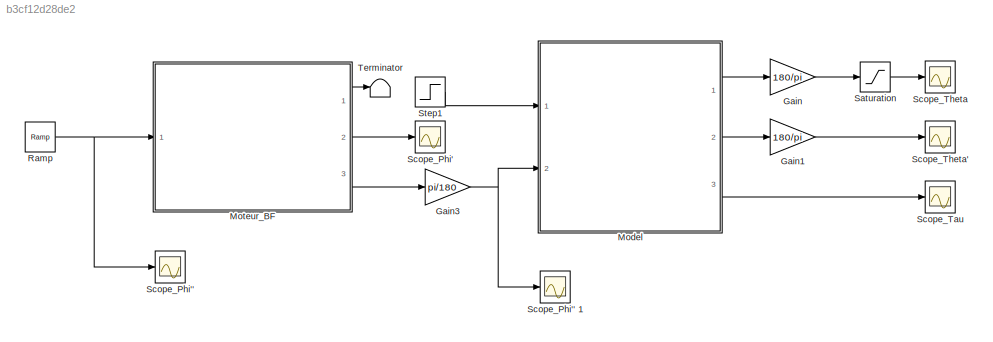
MODEL slx_b3cf12d28de2
KIND model
CONFIG AbsTol = auto
CONFIG EnableMultiTasking = off
CONFIG FixedStep = auto
CONFIG MaxStep = auto
CONFIG MinStep = auto
CONFIG RelTol = 1e-3
CONFIG SampleTimeConstraint = Unconstrained
CONFIG Solver = VariableStepAuto
CONFIG SolverName = VariableStepAuto
CONFIG StartTime = 0.0
CONFIG StopTime = simTime
BLOCK [Gain] Gain
  Gain = 180/pi
  OutDataTypeStr = Inherit: Inherit via internal rule
  ParamDataTypeStr = Inherit: Inherit via internal rule
  SaturateOnIntegerOverflow = off
BLOCK [Gain] Gain1
  Gain = 180/pi
  OutDataTypeStr = Inherit: Inherit via internal rule
  ParamDataTypeStr = Inherit: Inherit via internal rule
  SaturateOnIntegerOverflow = off
BLOCK [Gain] Gain3
  Gain = pi/180
  OutDataTypeStr = Inherit: Inherit via internal rule
  ParamDataTypeStr = Inherit: Inherit via internal rule
  SaturateOnIntegerOverflow = off
BLOCK [ModelReference] Model
  InitialCondition = AngleInitial*pi/180
  ModelNameDialog = Velo.slx
  ModelReferenceVersion = 1.73
  ParameterArgumentNames = InitialCondition
  ParameterArgumentValues = InitialCondition
  Ports = [2, 3]
  UsingDefaultArgumentValue = 0
BLOCK [ModelReference] Moteur_BF 
  ModelNameDialog = Moteur_BF
  ModelReferenceVersion = 1.78
  Ports = [1, 3]
BLOCK [Reference] Ramp  REF=simulink/Sources/Ramp
  Ports = [0, 1]
  SourceBlock = simulink/Sources/Ramp
  SourceProductBaseCode = SL
  SourceProductName = Simulink
  SourceType = Ramp
BLOCK [Saturate] Saturation
  InputPortMap = u0
  LowerLimit = -20
  Ports = [1, 1]
  UpperLimit = 20
BLOCK [Scope] Scope_Phi' 
  Floating = off
  NumInputPorts = 1
  Ports = [1]
  ScopeSpecificationString = Simulink.scopes.TimeScopeBlockCfg('CurrentConfiguration', extmgr.ConfigurationSet(extmgr.Configuration('Core','General UI',true),extmgr.Configuration('Core','Source UI',true),extmgr.Configuration('Sources','WiredSimulink',true,'DataLoggingVariableName','Phi_dot','DataLoggingSaveFormat','Array','SampleTime','0.0001','DataLogging',true),extmgr.Configuration('Visuals','Time Domain',true,'SerializedDi...<+1542ch>
BLOCK [Scope] Scope_Phi''
  Floating = off
  NumInputPorts = 1
  Ports = [1]
  ScopeSpecificationString = Simulink.scopes.TimeScopeBlockCfg('CurrentConfiguration', extmgr.ConfigurationSet(extmgr.Configuration('Core','General UI',true),extmgr.Configuration('Core','Source UI',true),extmgr.Configuration('Sources','WiredSimulink',true,'DataLoggingVariableName','Phi_dot_des','DataLoggingSaveFormat','Array','SampleTime','0.0001','DataLogging',true),extmgr.Configuration('Visuals','Time Domain',true,'Serializ...<+1538ch>
BLOCK [Scope] Scope_Phi'' 1
  Floating = off
  NumInputPorts = 1
  Ports = [1]
  ScopeSpecificationString = Simulink.scopes.TimeScopeBlockCfg('CurrentConfiguration', extmgr.ConfigurationSet(extmgr.Configuration('Core','General UI',true),extmgr.Configuration('Core','Source UI',true),extmgr.Configuration('Sources','WiredSimulink',true,'DataLoggingVariableName','Phi_dot_dot','DataLoggingSaveFormat','Array','SampleTime','0.0001','DataLogging',true),extmgr.Configuration('Visuals','Time Domain',true,'Serializ...<+1523ch>
BLOCK [Scope] Scope_Tau
  Floating = off
  NumInputPorts = 1
  Ports = [1]
  ScopeSpecificationString = Simulink.scopes.TimeScopeBlockCfg('CurrentConfiguration', extmgr.ConfigurationSet(extmgr.Configuration('Core','General UI',true),extmgr.Configuration('Core','Source UI',true),extmgr.Configuration('Sources','WiredSimulink',true,'DataLoggingVariableName','Tau','DataLoggingSaveFormat','Array'),extmgr.Configuration('Visuals','Time Domain',true,'SerializedDisplays',{struct('MinYLimReal','-0.0904','MaxY...<+1433ch>
BLOCK [Scope] Scope_Theta
  Floating = off
  NumInputPorts = 1
  Ports = [1]
  ScopeSpecificationString = Simulink.scopes.TimeScopeBlockCfg('CurrentConfiguration', extmgr.ConfigurationSet(extmgr.Configuration('Core','General UI',true),extmgr.Configuration('Core','Source UI',true),extmgr.Configuration('Sources','WiredSimulink',true,'DataLoggingVariableName','Theta_BO','DataLogging',true,'DataLoggingSaveFormat','Array','SampleTime','0.01'),extmgr.Configuration('Visuals','Time Domain',true,'SerializedDis...<+1515ch>
BLOCK [Scope] Scope_Theta'
  Floating = off
  NumInputPorts = 1
  Ports = [1]
  ScopeSpecificationString = Simulink.scopes.TimeScopeBlockCfg('CurrentConfiguration', extmgr.ConfigurationSet(extmgr.Configuration('Core','General UI',true),extmgr.Configuration('Core','Source UI',true),extmgr.Configuration('Sources','WiredSimulink',true,'DataLoggingSaveFormat','Array'),extmgr.Configuration('Visuals','Time Domain',true,'SerializedDisplays',{struct('MinYLimReal','-265.16786','MaxYLimReal','29.4631','YLabelRea...<+1413ch>
BLOCK [Step] Step1
  After = 0
  SampleTime = 0
  Time = 0
BLOCK [Terminator] Terminator
LINE Gain1:1 -> Scope_Theta':1
NET Gain3:1 -> Model:2, Scope_Phi'' 1:1
LINE Gain:1 -> Saturation:1
LINE Model:1 -> Gain:1
LINE Model:2 -> Gain1:1
LINE Model:3 -> Scope_Tau:1
LINE Moteur_BF :1 -> Terminator:1
LINE Moteur_BF :2 -> Scope_Phi' :1
LINE Moteur_BF :3 -> Gain3:1
NET Ramp:1 -> Moteur_BF :1, Scope_Phi'':1
LINE Saturation:1 -> Scope_Theta:1
LINE Step1:1 -> Model:1
note: NET lines group one-source signal fan-out (src -> all destinations, sorted); 1:1 wires keep LINE
